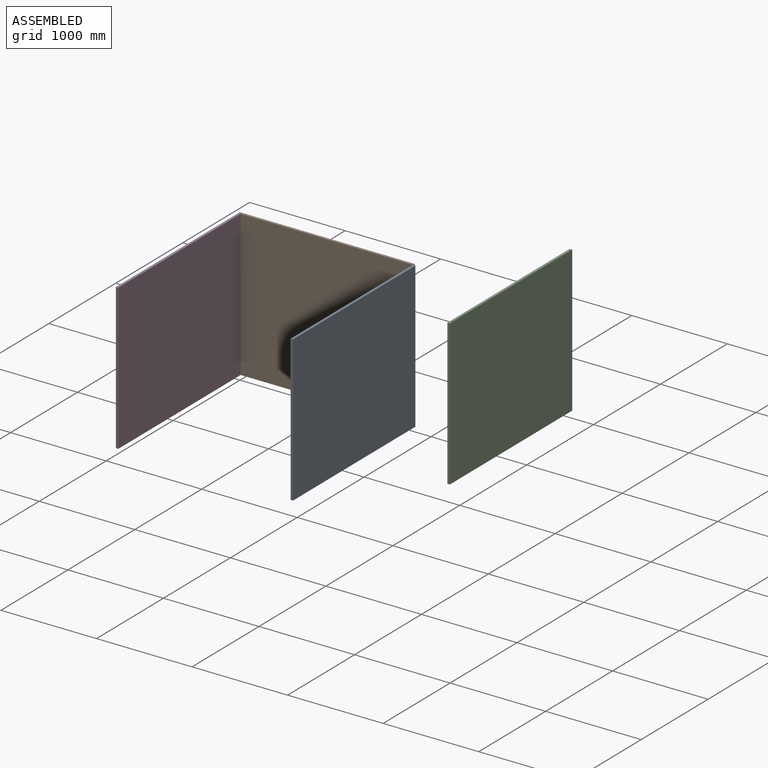
[diagram: assembled view]
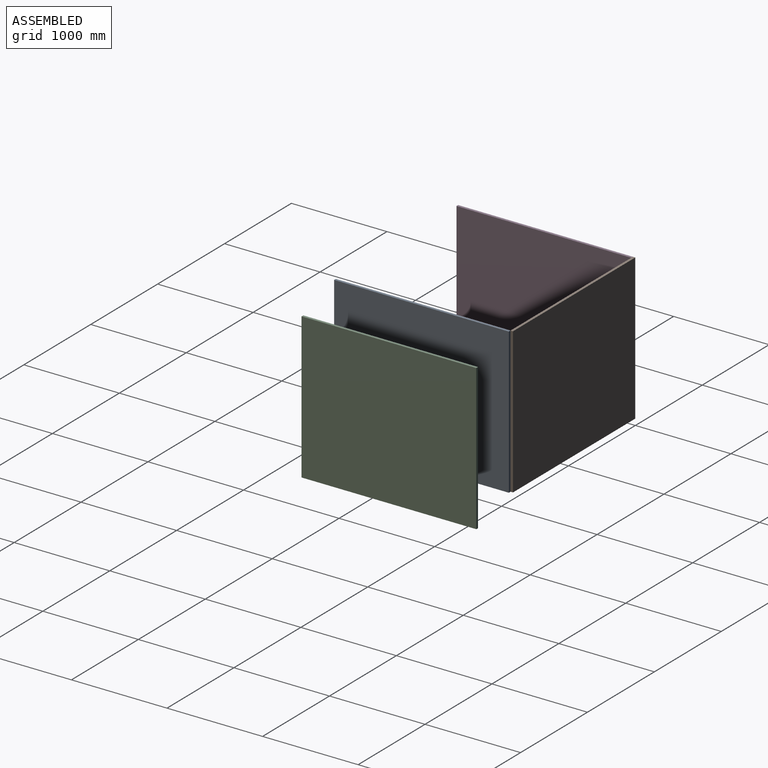
[diagram: assembled view, second angle]
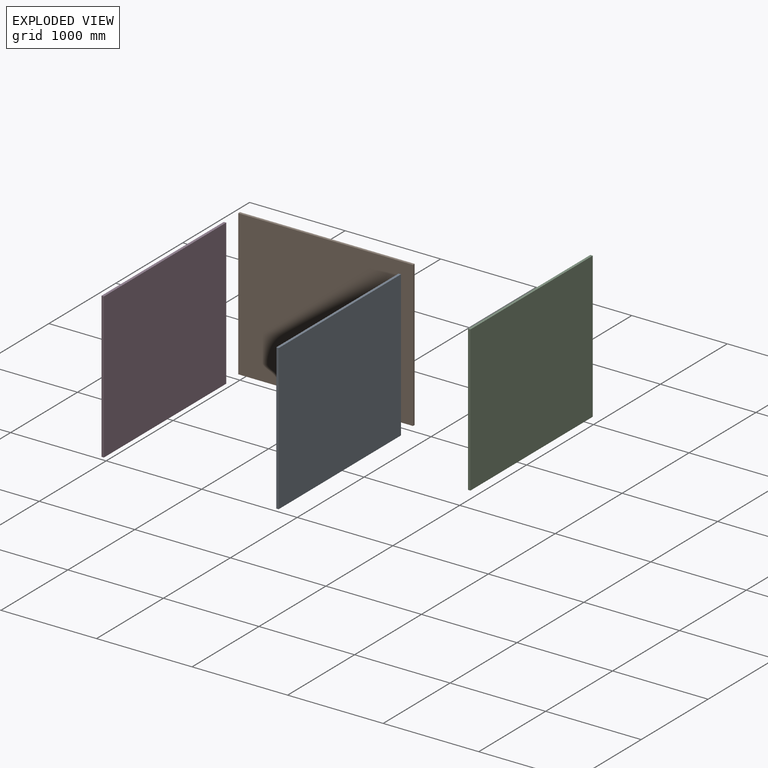
[diagram: exploded view]
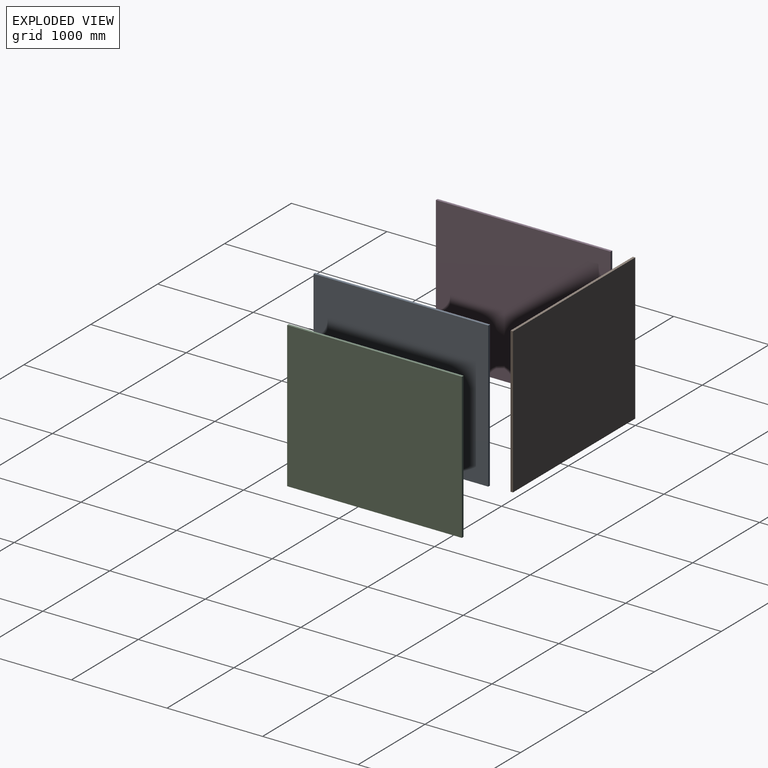
[diagram: exploded view, second angle]
ASSEMBLY  parts=4 mates=2
PART A: 6 faces, bbox 1828.8x25.4x1524 mm
  f0: plane 1828.8x25.4mm, normal (0,0,-1), area 46451.5mm2, adj f1,f3,f4,f5
  f1: plane 1524x25.4mm, normal (1,0,0), area 38709.6mm2, adj f0,f2,f4,f5
  f2: plane 1828.8x25.4mm, normal (0,0,1), area 46451.5mm2, adj f1,f3,f4,f5
  f3: plane 1524x25.4mm, normal (-1,0,0), area 38709.6mm2, adj f0,f2,f4,f5
  f4: plane 1828.8x1524mm, normal (0,-1,0), area 2787091.2mm2, adj f0,f1,f2,f3
  f5: plane 1828.8x1524mm, normal (0,1,0), area 2787091.2mm2, adj f0,f1,f2,f3
PART B: same geometry as A
PART C: same geometry as A
PART D: same geometry as A
PLACE A rot(axis=(0,0,-1),90deg) t=(1854.2,-25.4,-1524)mm
PLACE B t=(0,0,-1524)mm
PLACE C rot(axis=(0,0,-1),90deg) t=(3115.27,517.01,-1242.04)mm
PLACE D rot(axis=(0,0,-1),90deg) t=(25.4,-25.4,-1524)mm
MATE fastened D.f3 <-> B.f4  axis (0,1,0) through (0,-25.4,-1524)mm
MATE fastened A.f3 <-> B.f4  axis (0,1,0) through (1828.8,-25.4,-1524)mm
